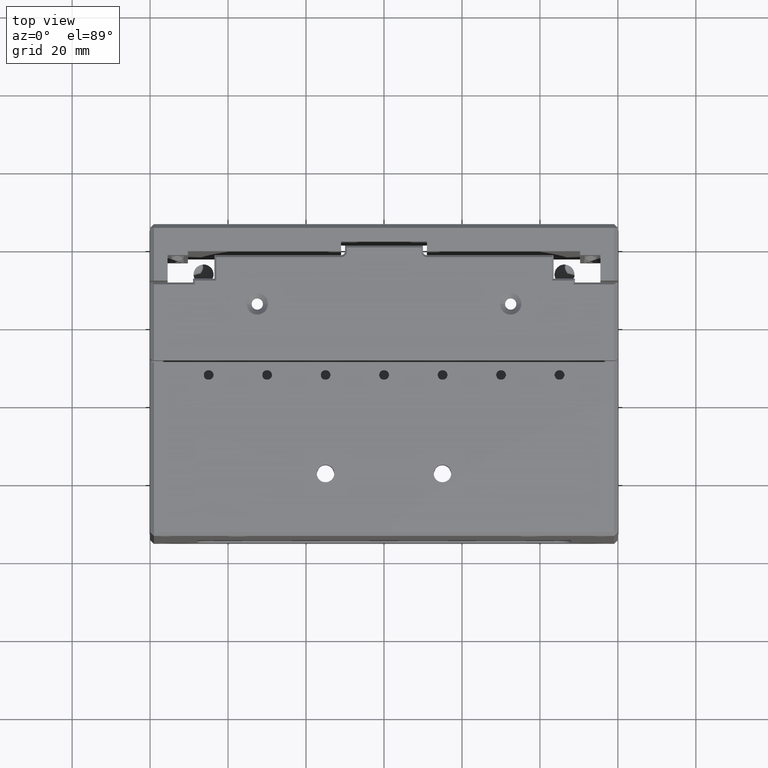
[diagram: clean part render]
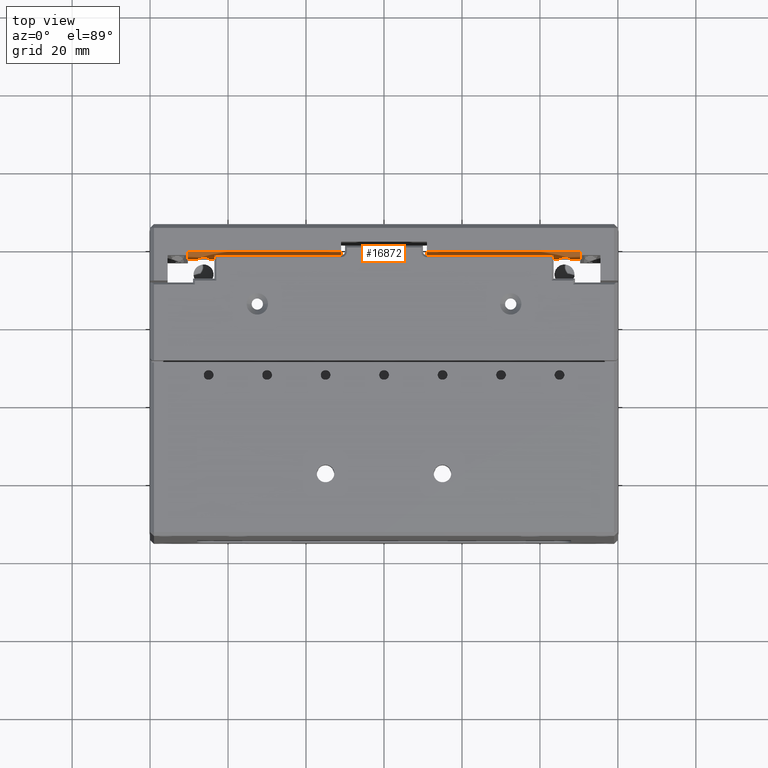
[diagram: same view with one face highlighted and labeled with its STEP entity id]
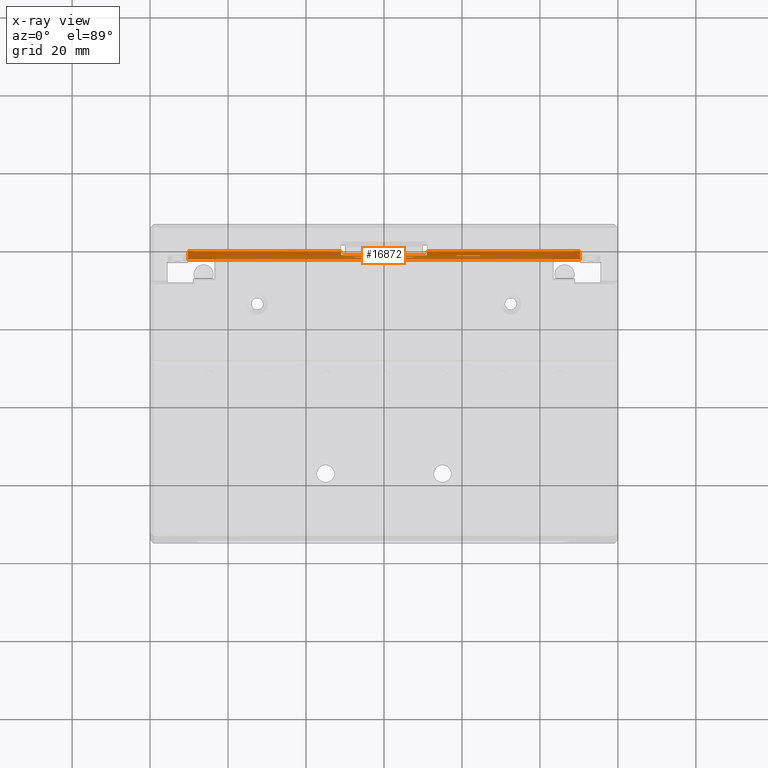
[diagram: x-ray of the same camera — body ghosted, the highlighted face saturated]
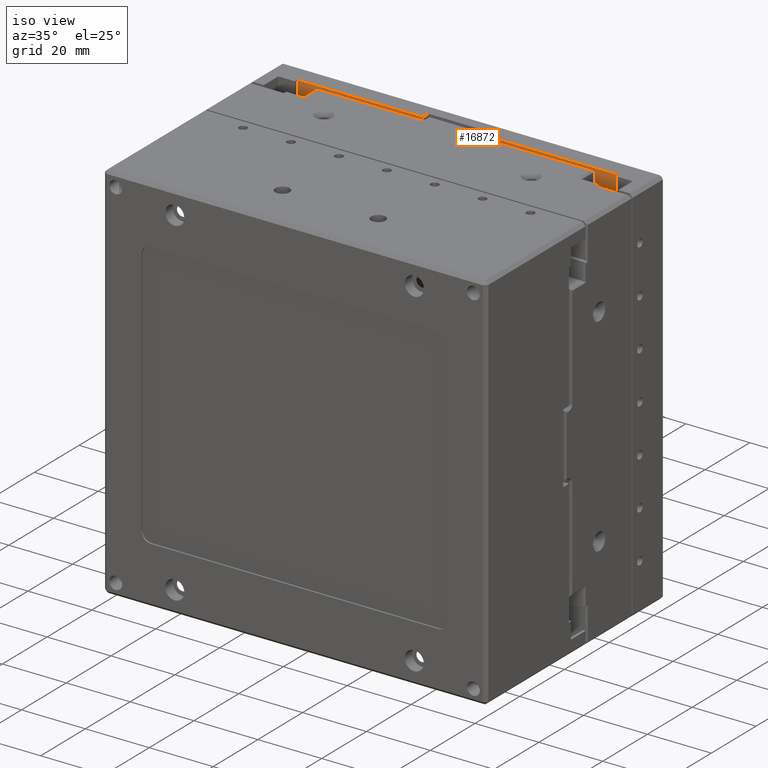
[diagram: same view with one face highlighted and labeled with its STEP entity id]
A machine part, top view. The second image highlights one B-rep face of the part: STEP entity #16872.
The next image is the same camera in x-ray: the body ghosted, the highlighted face saturated — about 51% of this face is hidden behind the body in this view.
A second angle (iso view) of the same face is appended — the face is thin or edge-on in the first view.
In plain terms, the highlighted planar face has unit normal (-0, 1, 0).
Its self-contained STEP definition (entity closure, byte-faithful):
#279 = CIRCLE ( 'NONE', #2746, 1.549999999999997600 ) ;
#356 = VERTEX_POINT ( 'NONE', #16339 ) ;
#402 = CIRCLE ( 'NONE', #14238, 1.549999999999997600 ) ;
#460 = VERTEX_POINT ( 'NONE', #11833 ) ;
#759 = ORIENTED_EDGE ( 'NONE', *, *, #2589, .F. ) ;
#920 = LINE ( 'NONE', #19715, #15662 ) ;
#1091 = ORIENTED_EDGE ( 'NONE', *, *, #19420, .T. ) ;
#1194 = CARTESIAN_POINT ( 'NONE',  ( 11.00000000000001800, 18.00000000000002100, 1.999999999999983100 ) ) ;
#1216 = CARTESIAN_POINT ( 'NONE',  ( 11.00000000000003000, 18.00000000000001400, 59.99999999999997200 ) ) ;
#1223 = ORIENTED_EDGE ( 'NONE', *, *, #11062, .T. ) ;
#1365 = ORIENTED_EDGE ( 'NONE', *, *, #13836, .T. ) ;
#1414 = DIRECTION ( 'NONE',  ( -1.000000000000000000, -1.890109125863145900E-016, 3.330669073875468100E-016 ) ) ;
#1449 = PLANE ( 'NONE',  #13460 ) ;
#1465 = CARTESIAN_POINT ( 'NONE',  ( -50.29999999999998300, 18.00000000000000400, 59.99999999999999300 ) ) ;
#1529 = CARTESIAN_POINT ( 'NONE',  ( 50.29999999999999700, 18.00000000000003900, -60.00000000000005000 ) ) ;
#1650 = CARTESIAN_POINT ( 'NONE',  ( 6.000000000000001800, 18.00000000000002800, -30.25000000000002500 ) ) ;
#1728 = VERTEX_POINT ( 'NONE', #14287 ) ;
#1910 = ORIENTED_EDGE ( 'NONE', *, *, #19702, .F. ) ;
#1919 = EDGE_CURVE ( 'NONE', #10191, #7574, #14361, .T. ) ;
#2151 = DIRECTION ( 'NONE',  ( -1.000000000000000000, -1.890109125863145900E-016, 3.330669073875468100E-016 ) ) ;
#2335 = DIRECTION ( 'NONE',  ( -3.330669073875468600E-016, 1.650805674533677300E-016, -1.000000000000000000 ) ) ;
#2507 = ORIENTED_EDGE ( 'NONE', *, *, #10665, .F. ) ;
#2589 = EDGE_CURVE ( 'NONE', #11263, #5686, #12487, .T. ) ;
#2688 = VECTOR ( 'NONE', #17890, 1000.000000000000000 ) ;
#2722 = DIRECTION ( 'NONE',  ( -1.000000000000000000, 0.0000000000000000000, 4.336808689942017700E-016 ) ) ;
#2746 = AXIS2_PLACEMENT_3D ( 'NONE', #1650, #4853, #16401 ) ;
#2825 = VERTEX_POINT ( 'NONE', #3644 ) ;
#3179 = CARTESIAN_POINT ( 'NONE',  ( -10.99999999999999500, 18.00000000000001800, 1.999999999999990000 ) ) ;
#3186 = EDGE_LOOP ( 'NONE', ( #2507, #759, #3885, #14329 ) ) ;
#3350 = VECTOR ( 'NONE', #18226, 1000.000000000000000 ) ;
#3414 = DIRECTION ( 'NONE',  ( -1.890109125863145400E-016, 1.000000000000000000, 1.650805674533678300E-016 ) ) ;
#3458 = CARTESIAN_POINT ( 'NONE',  ( 6.000000000000001800, 18.00000000000002800, -30.25000000000002500 ) ) ;
#3644 = CARTESIAN_POINT ( 'NONE',  ( 50.30000000000004000, 18.00000000000002100, 59.99999999999996400 ) ) ;
#3720 = VERTEX_POINT ( 'NONE', #18051 ) ;
#3885 = ORIENTED_EDGE ( 'NONE', *, *, #13943, .F. ) ;
#4070 = VERTEX_POINT ( 'NONE', #1194 ) ;
#4196 = VERTEX_POINT ( 'NONE', #1465 ) ;
#4310 = VECTOR ( 'NONE', #18522, 1000.000000000000000 ) ;
#4595 = CARTESIAN_POINT ( 'NONE',  ( 50.29999999999999700, 18.00000000000003900, -60.00000000000005000 ) ) ;
#4816 = VECTOR ( 'NONE', #8178, 1000.000000000000000 ) ;
#4838 = CARTESIAN_POINT ( 'NONE',  ( -5.999999999999998200, 18.00000000000002500, -30.25000000000001800 ) ) ;
#4853 = DIRECTION ( 'NONE',  ( -1.890109125863145400E-016, 1.000000000000000000, 1.650805674533678300E-016 ) ) ;
#4897 = AXIS2_PLACEMENT_3D ( 'NONE', #7738, #19309, #20967 ) ;
#4973 = CARTESIAN_POINT ( 'NONE',  ( -7.549999999999996300, 18.00000000000002500, -30.25000000000001800 ) ) ;
#5120 = DIRECTION ( 'NONE',  ( -1.890109125863145400E-016, 1.000000000000000000, 1.650805674533678300E-016 ) ) ;
#5490 = CARTESIAN_POINT ( 'NONE',  ( 24.60000000000003000, 18.00000000000002500, -3.500000000000006700 ) ) ;
#5654 = EDGE_CURVE ( 'NONE', #356, #8733, #279, .T. ) ;
#5686 = VERTEX_POINT ( 'NONE', #8147 ) ;
#5896 = CARTESIAN_POINT ( 'NONE',  ( 24.60000000000002600, 18.00000000000002800, -9.500000000000005300 ) ) ;
#6239 = VECTOR ( 'NONE', #8666, 1000.000000000000000 ) ;
#6836 = EDGE_CURVE ( 'NONE', #4070, #12361, #18045, .T. ) ;
#7056 = ORIENTED_EDGE ( 'NONE', *, *, #6836, .F. ) ;
#7089 = CARTESIAN_POINT ( 'NONE',  ( 24.60000000000002600, 18.00000000000002800, -9.500000000000005300 ) ) ;
#7235 = ORIENTED_EDGE ( 'NONE', *, *, #18179, .T. ) ;
#7534 = VECTOR ( 'NONE', #2335, 1000.000000000000000 ) ;
#7561 = VERTEX_POINT ( 'NONE', #13214 ) ;
#7574 = VERTEX_POINT ( 'NONE', #3179 ) ;
#7738 = CARTESIAN_POINT ( 'NONE',  ( -5.999999999999998200, 18.00000000000002500, -30.25000000000001800 ) ) ;
#7763 = EDGE_LOOP ( 'NONE', ( #1091, #7056, #15943, #1910, #9304, #18812, #17683, #13000, #7235, #1365 ) ) ;
#7833 = ORIENTED_EDGE ( 'NONE', *, *, #5654, .T. ) ;
#8147 = CARTESIAN_POINT ( 'NONE',  ( 24.60000000000003000, 18.00000000000002500, -3.500000000000006700 ) ) ;
#8178 = DIRECTION ( 'NONE',  ( -3.330669073875468600E-016, 1.650805674533677300E-016, -1.000000000000000000 ) ) ;
#8406 = DIRECTION ( 'NONE',  ( -1.000000000000000000, 0.0000000000000000000, 0.0000000000000000000 ) ) ;
#8557 = FACE_BOUND ( 'NONE', #18323, .T. ) ;
#8666 = DIRECTION ( 'NONE',  ( 1.000000000000000000, 1.890109125863145900E-016, -3.330669073875468100E-016 ) ) ;
#8721 = AXIS2_PLACEMENT_3D ( 'NONE', #19187, #12528, #2722 ) ;
#8726 = EDGE_CURVE ( 'NONE', #16691, #18873, #12739, .T. ) ;
#8733 = VERTEX_POINT ( 'NONE', #9805 ) ;
#8941 = LINE ( 'NONE', #1529, #11779 ) ;
#8985 = CARTESIAN_POINT ( 'NONE',  ( 24.60000000000002600, 18.00000000000002800, -9.500000000000005300 ) ) ;
#9254 = DIRECTION ( 'NONE',  ( 1.000000000000000000, 1.890109125863145900E-016, -3.330669073875468100E-016 ) ) ;
#9304 = ORIENTED_EDGE ( 'NONE', *, *, #1919, .T. ) ;
#9576 = VERTEX_POINT ( 'NONE', #16675 ) ;
#9770 = CARTESIAN_POINT ( 'NONE',  ( 50.30000000000004000, 18.00000000000002100, 59.99999999999996400 ) ) ;
#9805 = CARTESIAN_POINT ( 'NONE',  ( 7.549999999999999800, 18.00000000000002800, -30.25000000000002500 ) ) ;
#10038 = EDGE_LOOP ( 'NONE', ( #10610, #16754 ) ) ;
#10116 = EDGE_CURVE ( 'NONE', #3720, #7574, #13338, .T. ) ;
#10191 = VERTEX_POINT ( 'NONE', #20365 ) ;
#10610 = ORIENTED_EDGE ( 'NONE', *, *, #12012, .T. ) ;
#10665 = EDGE_CURVE ( 'NONE', #5686, #7561, #17359, .T. ) ;
#10741 = LINE ( 'NONE', #16359, #4816 ) ;
#10930 = AXIS2_PLACEMENT_3D ( 'NONE', #16236, #21209, #18054 ) ;
#10948 = EDGE_CURVE ( 'NONE', #3720, #4196, #920, .T. ) ;
#11062 = EDGE_CURVE ( 'NONE', #8733, #356, #402, .T. ) ;
#11103 = LINE ( 'NONE', #9770, #3350 ) ;
#11263 = VERTEX_POINT ( 'NONE', #8985 ) ;
#11779 = VECTOR ( 'NONE', #18308, 1000.000000000000000 ) ;
#11833 = CARTESIAN_POINT ( 'NONE',  ( 9.000000000000017800, 18.00000000000002100, -3.190874175429041300E-014 ) ) ;
#12012 = EDGE_CURVE ( 'NONE', #18873, #16691, #14786, .T. ) ;
#12361 = VERTEX_POINT ( 'NONE', #1216 ) ;
#12386 = DIRECTION ( 'NONE',  ( 2.174186756557597400E-016, -1.650805674533677500E-016, 1.000000000000000000 ) ) ;
#12487 = LINE ( 'NONE', #5896, #2688 ) ;
#12528 = DIRECTION ( 'NONE',  ( -1.890109125863145400E-016, 1.000000000000000000, 1.650805674533678300E-016 ) ) ;
#12739 = CIRCLE ( 'NONE', #18918, 1.549999999999997600 ) ;
#12902 = DIRECTION ( 'NONE',  ( -1.890109125863145400E-016, 1.000000000000000000, 1.650805674533678300E-016 ) ) ;
#13000 = ORIENTED_EDGE ( 'NONE', *, *, #16774, .T. ) ;
#13214 = CARTESIAN_POINT ( 'NONE',  ( 18.60000000000003000, 18.00000000000002500, -3.500000000000004400 ) ) ;
#13276 = CIRCLE ( 'NONE', #8721, 2.000000000000000000 ) ;
#13338 = LINE ( 'NONE', #18672, #4310 ) ;
#13460 = AXIS2_PLACEMENT_3D ( 'NONE', #18019, #3414, #14960 ) ;
#13836 = EDGE_CURVE ( 'NONE', #18343, #2825, #8941, .T. ) ;
#13943 = EDGE_CURVE ( 'NONE', #9576, #11263, #16589, .T. ) ;
#14006 = FACE_OUTER_BOUND ( 'NONE', #7763, .T. ) ;
#14238 = AXIS2_PLACEMENT_3D ( 'NONE', #3458, #5120, #8406 ) ;
#14287 = CARTESIAN_POINT ( 'NONE',  ( -50.30000000000002600, 18.00000000000002100, -60.00000000000002100 ) ) ;
#14329 = ORIENTED_EDGE ( 'NONE', *, *, #15298, .F. ) ;
#14361 = CIRCLE ( 'NONE', #10930, 2.000000000000000000 ) ;
#14784 = FACE_BOUND ( 'NONE', #10038, .T. ) ;
#14786 = CIRCLE ( 'NONE', #4897, 1.549999999999997600 ) ;
#14877 = VECTOR ( 'NONE', #9254, 1000.000000000000000 ) ;
#14960 = DIRECTION ( 'NONE',  ( -1.000000000000000000, -1.890109125863145900E-016, 3.330669073875468100E-016 ) ) ;
#15298 = EDGE_CURVE ( 'NONE', #7561, #9576, #10741, .T. ) ;
#15435 = CARTESIAN_POINT ( 'NONE',  ( 11.00000000000003000, 18.00000000000001400, 59.99999999999997200 ) ) ;
#15562 = LINE ( 'NONE', #20510, #7534 ) ;
#15611 = CARTESIAN_POINT ( 'NONE',  ( 11.00000000000001800, 18.00000000000002100, -3.257487556906550700E-014 ) ) ;
#15662 = VECTOR ( 'NONE', #1414, 1000.000000000000000 ) ;
#15943 = ORIENTED_EDGE ( 'NONE', *, *, #16247, .T. ) ;
#16078 = FACE_BOUND ( 'NONE', #3186, .T. ) ;
#16236 = CARTESIAN_POINT ( 'NONE',  ( -8.999999999999992900, 18.00000000000001800, 1.999999999999974000 ) ) ;
#16247 = EDGE_CURVE ( 'NONE', #4070, #460, #13276, .T. ) ;
#16255 = LINE ( 'NONE', #15611, #18074 ) ;
#16339 = CARTESIAN_POINT ( 'NONE',  ( 4.450000000000004600, 18.00000000000002800, -30.25000000000002500 ) ) ;
#16359 = CARTESIAN_POINT ( 'NONE',  ( 18.60000000000002600, 18.00000000000002500, -9.500000000000003600 ) ) ;
#16401 = DIRECTION ( 'NONE',  ( -1.000000000000000000, 0.0000000000000000000, 0.0000000000000000000 ) ) ;
#16589 = LINE ( 'NONE', #7089, #6239 ) ;
#16675 = CARTESIAN_POINT ( 'NONE',  ( 18.60000000000002600, 18.00000000000002500, -9.500000000000003600 ) ) ;
#16691 = VERTEX_POINT ( 'NONE', #18607 ) ;
#16754 = ORIENTED_EDGE ( 'NONE', *, *, #8726, .T. ) ;
#16774 = EDGE_CURVE ( 'NONE', #4196, #1728, #15562, .T. ) ;
#16796 = CARTESIAN_POINT ( 'NONE',  ( 50.29999999999999700, 18.00000000000003900, -60.00000000000005000 ) ) ;
#16872 = ADVANCED_FACE ( 'NONE', ( #8557, #14784, #14006, #16078 ), #1449, .F. ) ;
#16987 = VECTOR ( 'NONE', #12386, 1000.000000000000000 ) ;
#17196 = LINE ( 'NONE', #16796, #14877 ) ;
#17359 = LINE ( 'NONE', #5490, #20170 ) ;
#17683 = ORIENTED_EDGE ( 'NONE', *, *, #10948, .T. ) ;
#17890 = DIRECTION ( 'NONE',  ( 3.330669073875468600E-016, -1.650805674533677300E-016, 1.000000000000000000 ) ) ;
#18019 = CARTESIAN_POINT ( 'NONE',  ( 1.173141724396503900E-014, 18.00000000000002100, -2.891113958780248400E-014 ) ) ;
#18045 = LINE ( 'NONE', #15435, #16987 ) ;
#18051 = CARTESIAN_POINT ( 'NONE',  ( -10.99999999999997200, 18.00000000000001100, 59.99999999999998600 ) ) ;
#18054 = DIRECTION ( 'NONE',  ( -1.000000000000000000, 0.0000000000000000000, 4.336808689942017700E-016 ) ) ;
#18055 = DIRECTION ( 'NONE',  ( -1.000000000000000000, 0.0000000000000000000, 0.0000000000000000000 ) ) ;
#18074 = VECTOR ( 'NONE', #20715, 1000.000000000000000 ) ;
#18179 = EDGE_CURVE ( 'NONE', #1728, #18343, #17196, .T. ) ;
#18226 = DIRECTION ( 'NONE',  ( -1.000000000000000000, -1.890109125863145900E-016, 3.330669073875468100E-016 ) ) ;
#18308 = DIRECTION ( 'NONE',  ( 3.330669073875468600E-016, -1.650805674533677300E-016, 1.000000000000000000 ) ) ;
#18323 = EDGE_LOOP ( 'NONE', ( #7833, #1223 ) ) ;
#18343 = VERTEX_POINT ( 'NONE', #4595 ) ;
#18522 = DIRECTION ( 'NONE',  ( -4.487151391193340400E-016, 1.650805674533677000E-016, -1.000000000000000000 ) ) ;
#18607 = CARTESIAN_POINT ( 'NONE',  ( -4.450000000000001100, 18.00000000000002500, -30.25000000000001800 ) ) ;
#18672 = CARTESIAN_POINT ( 'NONE',  ( -10.99999999999996800, 18.00000000000001100, 59.99999999999998600 ) ) ;
#18812 = ORIENTED_EDGE ( 'NONE', *, *, #10116, .F. ) ;
#18873 = VERTEX_POINT ( 'NONE', #4973 ) ;
#18918 = AXIS2_PLACEMENT_3D ( 'NONE', #4838, #12902, #18055 ) ;
#19187 = CARTESIAN_POINT ( 'NONE',  ( 9.000000000000017800, 18.00000000000002100, 1.999999999999969600 ) ) ;
#19309 = DIRECTION ( 'NONE',  ( -1.890109125863145400E-016, 1.000000000000000000, 1.650805674533678300E-016 ) ) ;
#19420 = EDGE_CURVE ( 'NONE', #2825, #12361, #11103, .T. ) ;
#19702 = EDGE_CURVE ( 'NONE', #10191, #460, #16255, .T. ) ;
#19715 = CARTESIAN_POINT ( 'NONE',  ( 50.30000000000004000, 18.00000000000002100, 59.99999999999996400 ) ) ;
#20170 = VECTOR ( 'NONE', #2151, 1000.000000000000000 ) ;
#20365 = CARTESIAN_POINT ( 'NONE',  ( -8.999999999999992900, 18.00000000000001800, -2.591353742131456500E-014 ) ) ;
#20510 = CARTESIAN_POINT ( 'NONE',  ( -50.30000000000002600, 18.00000000000002100, -60.00000000000002100 ) ) ;
#20715 = DIRECTION ( 'NONE',  ( 1.000000000000000000, 1.890109125863145900E-016, -3.330669073875468100E-016 ) ) ;
#20967 = DIRECTION ( 'NONE',  ( -1.000000000000000000, 0.0000000000000000000, 0.0000000000000000000 ) ) ;
#21209 = DIRECTION ( 'NONE',  ( -1.890109125863145400E-016, 1.000000000000000000, 1.650805674533678300E-016 ) ) ;